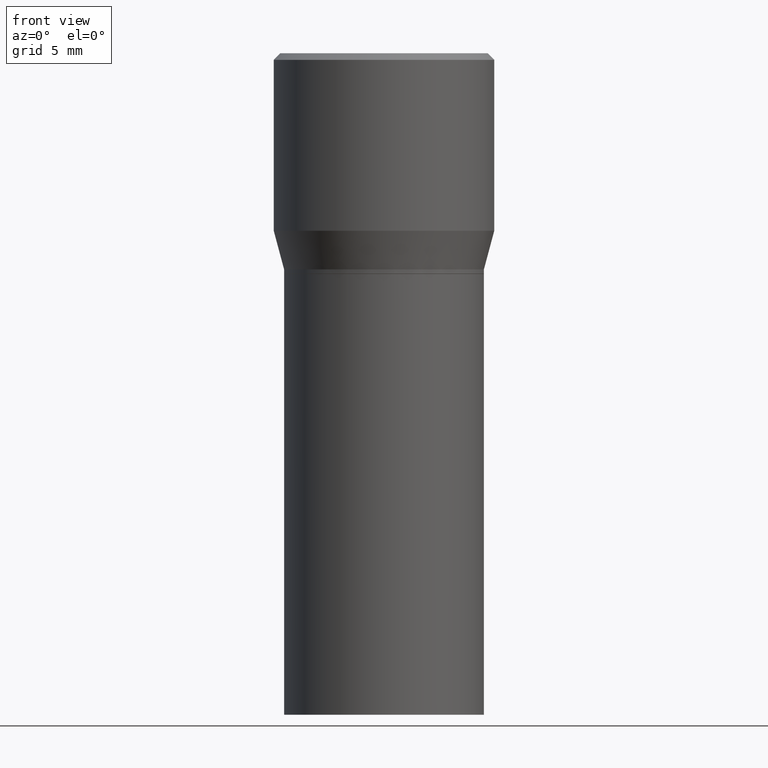
[diagram: clean part render]
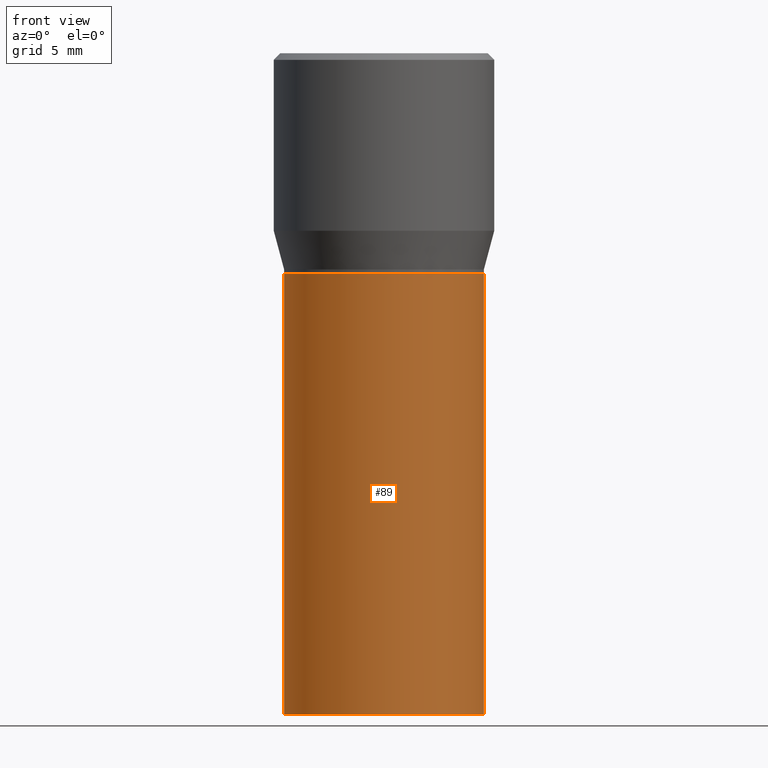
[diagram: same view with one face highlighted and labeled with its STEP entity id]
A machine part, front view. The second image highlights one B-rep face of the part: STEP entity #89.
In plain terms, the highlighted cylindrical surface (partial cylindrical patch) has radius 5.7544 mm, axis along (-0, 0, 1).
Its self-contained STEP definition (entity closure, byte-faithful):
#3 = VECTOR ( 'NONE', #301, 39.37007874015748143 ) ;
#15 = CARTESIAN_POINT ( 'NONE',  ( -0.2265500000000000014, -1.881746770978639193E-15, -1.500000000000000222 ) ) ;
#28 = EDGE_CURVE ( 'NONE', #323, #235, #233, .T. ) ;
#43 = CARTESIAN_POINT ( 'NONE',  ( 0.2265500000000000014, -1.581990194629823726E-15, 1.104697848556569281E-29 ) ) ;
#55 = CARTESIAN_POINT ( 'NONE',  ( 1.222734403092568719E-29, -1.745740669421573186E-15, -0.5000000000000001110 ) ) ;
#66 = VERTEX_POINT ( 'NONE', #406 ) ;
#69 = CARTESIAN_POINT ( 'NONE',  ( 0.000000000000000000, 0.000000000000000000, 0.000000000000000000 ) ) ;
#74 = DIRECTION ( 'NONE',  ( 1.000000000000000000, -6.982962677686266711E-15, 4.876176775795935793E-29 ) ) ;
#89 = ADVANCED_FACE ( 'NONE', ( #115 ), #225, .T. ) ;
#115 = FACE_OUTER_BOUND ( 'NONE', #158, .T. ) ;
#121 = DIRECTION ( 'NONE',  ( 1.000000000000000000, -6.982962677686267499E-15, 0.000000000000000000 ) ) ;
#127 = ORIENTED_EDGE ( 'NONE', *, *, #317, .F. ) ;
#142 = AXIS2_PLACEMENT_3D ( 'NONE', #273, #307, #121 ) ;
#158 = EDGE_LOOP ( 'NONE', ( #127, #455, #371, #428 ) ) ;
#167 = CARTESIAN_POINT ( 'NONE',  ( 0.2265500000000000014, -6.819212202894542298E-15, -1.500000000000000222 ) ) ;
#187 = CIRCLE ( 'NONE', #245, 0.2265500000000000014 ) ;
#197 = AXIS2_PLACEMENT_3D ( 'NONE', #69, #330, #74 ) ;
#198 = VECTOR ( 'NONE', #315, 39.37007874015748143 ) ;
#209 = EDGE_CURVE ( 'NONE', #320, #323, #266, .T. ) ;
#225 = CYLINDRICAL_SURFACE ( 'NONE', #197, 0.2265500000000000014 ) ;
#233 = LINE ( 'NONE', #43, #3 ) ;
#235 = VERTEX_POINT ( 'NONE', #405 ) ;
#245 = AXIS2_PLACEMENT_3D ( 'NONE', #55, #393, #351 ) ;
#249 = CARTESIAN_POINT ( 'NONE',  ( -0.2265500000000000014, 1.609734567864506981E-15, -1.114384744697248863E-29 ) ) ;
#266 = CIRCLE ( 'NONE', #142, 0.2265500000000000014 ) ;
#273 = CARTESIAN_POINT ( 'NONE',  ( 3.668203209277704895E-29, -5.237222008264718177E-15, -1.500000000000000222 ) ) ;
#301 = DIRECTION ( 'NONE',  ( -2.445468806185136877E-29, 3.491481338843145188E-15, 1.000000000000000000 ) ) ;
#307 = DIRECTION ( 'NONE',  ( -2.445468806185136597E-29, 3.491481338843145583E-15, 1.000000000000000000 ) ) ;
#315 = DIRECTION ( 'NONE',  ( -2.445468806185136877E-29, 3.491481338843145188E-15, 1.000000000000000000 ) ) ;
#317 = EDGE_CURVE ( 'NONE', #320, #66, #452, .T. ) ;
#320 = VERTEX_POINT ( 'NONE', #15 ) ;
#323 = VERTEX_POINT ( 'NONE', #167 ) ;
#330 = DIRECTION ( 'NONE',  ( -2.445468806185136597E-29, 3.491481338843145583E-15, 1.000000000000000000 ) ) ;
#351 = DIRECTION ( 'NONE',  ( 1.000000000000000000, -6.982962677686266711E-15, 0.000000000000000000 ) ) ;
#371 = ORIENTED_EDGE ( 'NONE', *, *, #28, .T. ) ;
#393 = DIRECTION ( 'NONE',  ( -2.445468806185136597E-29, 3.491481338843145583E-15, 1.000000000000000000 ) ) ;
#402 = EDGE_CURVE ( 'NONE', #66, #235, #187, .T. ) ;
#405 = CARTESIAN_POINT ( 'NONE',  ( 0.2265500000000000014, -3.327730864051397109E-15, -0.5000000000000001110 ) ) ;
#406 = CARTESIAN_POINT ( 'NONE',  ( -0.2265500000000000014, -1.881746770978639193E-15, -0.5000000000000001110 ) ) ;
#428 = ORIENTED_EDGE ( 'NONE', *, *, #402, .F. ) ;
#452 = LINE ( 'NONE', #249, #198 ) ;
#455 = ORIENTED_EDGE ( 'NONE', *, *, #209, .T. ) ;